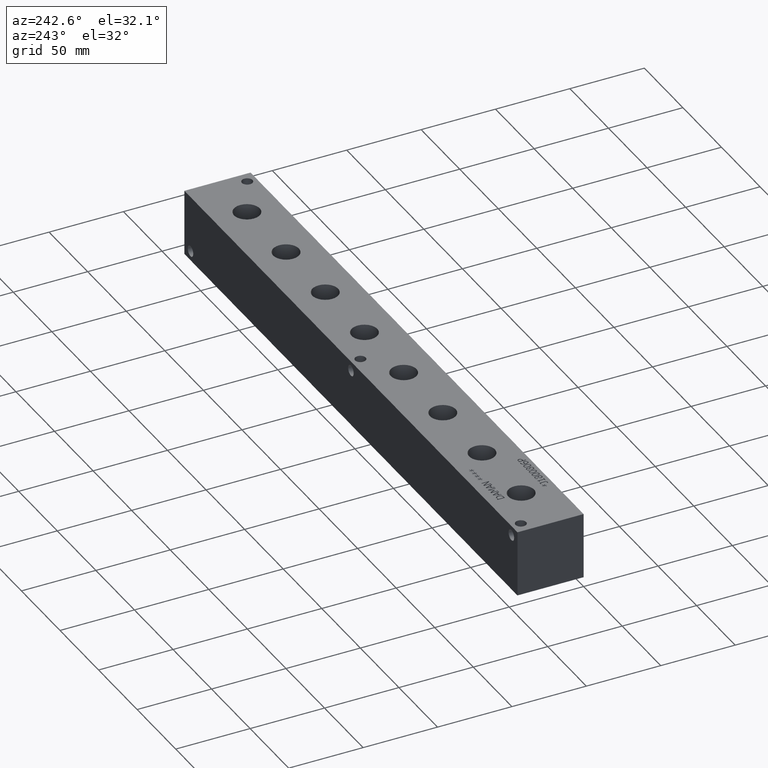
[diagram: clean part render]
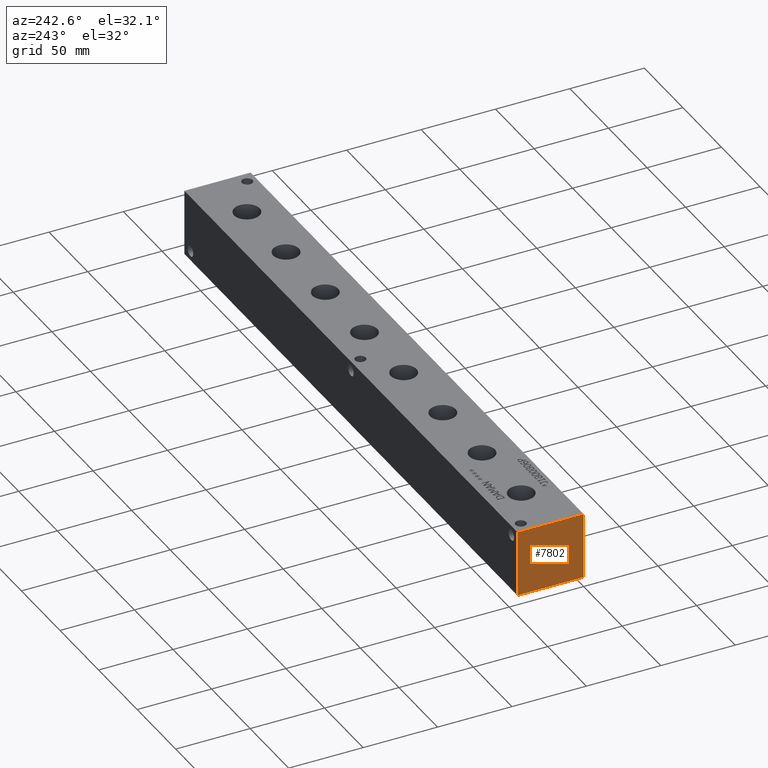
[diagram: same view with one face highlighted and labeled with its STEP entity id]
A machine part, auxiliary view. The second image highlights one B-rep face of the part: STEP entity #7802.
In plain terms, the highlighted planar face has unit normal (-1, 0, 0).
Its self-contained STEP definition (entity closure, byte-faithful):
#510=PLANE('',#8243);
#910=FACE_OUTER_BOUND('',#1368,.T.);
#1368=EDGE_LOOP('',(#6935,#6936,#6937,#6938));
#1648=LINE('',#12154,#2351);
#2086=LINE('',#13498,#2789);
#2087=LINE('',#13499,#2790);
#2088=LINE('',#13500,#2791);
#2351=VECTOR('',#8628,10.);
#2789=VECTOR('',#9790,10.);
#2790=VECTOR('',#9791,10.);
#2791=VECTOR('',#9792,10.);
#3339=VERTEX_POINT('',#12147);
#3342=VERTEX_POINT('',#12152);
#3757=VERTEX_POINT('',#13496);
#3758=VERTEX_POINT('',#13497);
#4232=EDGE_CURVE('',#3342,#3339,#1648,.T.);
#4828=EDGE_CURVE('',#3757,#3758,#2086,.T.);
#4829=EDGE_CURVE('',#3758,#3339,#2087,.T.);
#4830=EDGE_CURVE('',#3757,#3342,#2088,.T.);
#6935=ORIENTED_EDGE('',*,*,#4828,.T.);
#6936=ORIENTED_EDGE('',*,*,#4829,.T.);
#6937=ORIENTED_EDGE('',*,*,#4232,.F.);
#6938=ORIENTED_EDGE('',*,*,#4830,.F.);
#7802=ADVANCED_FACE('',(#910),#510,.T.);
#8243=AXIS2_PLACEMENT_3D('',#13495,#9788,#9789);
#8628=DIRECTION('',(0.,-1.,0.));
#9788=DIRECTION('center_axis',(-1.,0.,0.));
#9789=DIRECTION('ref_axis',(0.,-1.,0.));
#9790=DIRECTION('',(0.,-1.,0.));
#9791=DIRECTION('',(0.,0.,1.));
#9792=DIRECTION('',(0.,0.,1.));
#12147=CARTESIAN_POINT('',(0.,0.,44.45));
#12152=CARTESIAN_POINT('',(0.,44.45,44.45));
#12154=CARTESIAN_POINT('',(0.,44.45,44.45));
#13495=CARTESIAN_POINT('Origin',(0.,44.45,0.));
#13496=CARTESIAN_POINT('',(0.,44.45,0.));
#13497=CARTESIAN_POINT('',(0.,0.,0.));
#13498=CARTESIAN_POINT('',(0.,44.45,0.));
#13499=CARTESIAN_POINT('',(0.,0.,0.));
#13500=CARTESIAN_POINT('',(0.,44.45,0.));